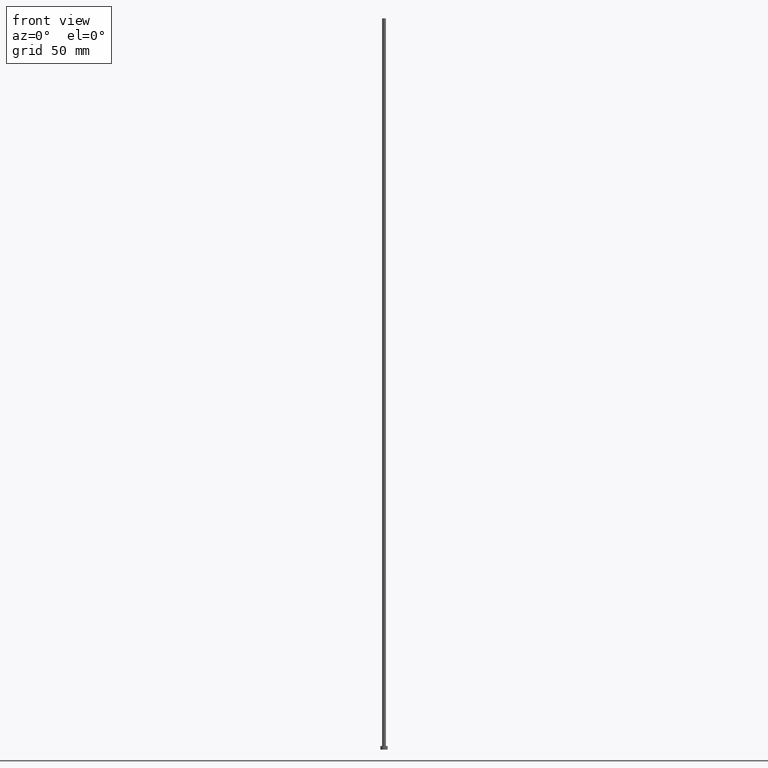
[diagram: clean part render]
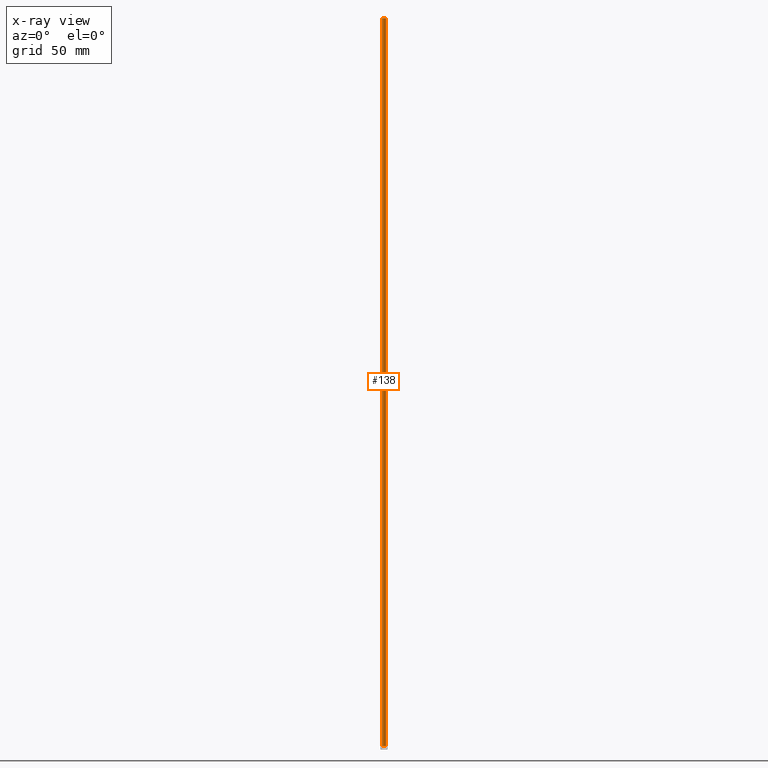
[diagram: x-ray — body ghosted, one internal face saturated and labeled with its STEP entity id]
A machine part, front view, then the same camera in x-ray: the body is ghosted and one INTERNAL B-rep face — a face not visible from any outside direction — is saturated and labeled: STEP entity #138.
In plain terms, the highlighted cylindrical surface (edge-blend (fillet) strip) has radius 1 mm, axis along (-0, -0, -1).
Its self-contained STEP definition (entity closure, byte-faithful):
#1 = DIRECTION ( 'NONE',  ( 1.000000000000000000, 0.000000000000000000, 0.000000000000000000 ) ) ;
#11 = LINE ( 'NONE', #113, #233 ) ;
#13 = VECTOR ( 'NONE', #236, 1000.000000000000000 ) ;
#21 = DIRECTION ( 'NONE',  ( 0.000000000000000000, 0.000000000000000000, 1.000000000000000000 ) ) ;
#23 = VERTEX_POINT ( 'NONE', #53 ) ;
#26 = CARTESIAN_POINT ( 'NONE',  ( 0.000000000000000000, 0.000000000000000000, 400.0000000000000000 ) ) ;
#37 = LINE ( 'NONE', #172, #13 ) ;
#40 = DIRECTION ( 'NONE',  ( -1.000000000000000000, 0.000000000000000000, 0.000000000000000000 ) ) ;
#49 = DIRECTION ( 'NONE',  ( 1.000000000000000000, 0.000000000000000000, 0.000000000000000000 ) ) ;
#51 = CIRCLE ( 'NONE', #184, 1.000000000000000000 ) ;
#53 = CARTESIAN_POINT ( 'NONE',  ( -1.000000000000000000, 0.000000000000000000, 2.000000000000000000 ) ) ;
#57 = AXIS2_PLACEMENT_3D ( 'NONE', #26, #157, #40 ) ;
#69 = ORIENTED_EDGE ( 'NONE', *, *, #114, .F. ) ;
#75 = VERTEX_POINT ( 'NONE', #182 ) ;
#76 = EDGE_CURVE ( 'NONE', #254, #75, #11, .T. ) ;
#78 = CARTESIAN_POINT ( 'NONE',  ( -1.000000000000000000, 0.000000000000000000, 400.0000000000000000 ) ) ;
#98 = CARTESIAN_POINT ( 'NONE',  ( 1.000000000000000000, 1.224646799147353207E-16, 400.0000000000000000 ) ) ;
#99 = ORIENTED_EDGE ( 'NONE', *, *, #207, .T. ) ;
#113 = CARTESIAN_POINT ( 'NONE',  ( 1.000000000000000000, 1.224646799147353207E-16, 400.0000000000000000 ) ) ;
#114 = EDGE_CURVE ( 'NONE', #254, #253, #226, .T. ) ;
#118 = EDGE_LOOP ( 'NONE', ( #69, #198, #99, #147 ) ) ;
#130 = CYLINDRICAL_SURFACE ( 'NONE', #57, 1.000000000000000000 ) ;
#138 = ADVANCED_FACE ( 'NONE', ( #219 ), #130, .T. ) ;
#147 = ORIENTED_EDGE ( 'NONE', *, *, #149, .F. ) ;
#149 = EDGE_CURVE ( 'NONE', #253, #23, #37, .T. ) ;
#157 = DIRECTION ( 'NONE',  ( -0.000000000000000000, -0.000000000000000000, -1.000000000000000000 ) ) ;
#172 = CARTESIAN_POINT ( 'NONE',  ( -1.000000000000000000, 0.000000000000000000, 400.0000000000000000 ) ) ;
#174 = DIRECTION ( 'NONE',  ( -0.000000000000000000, -0.000000000000000000, -1.000000000000000000 ) ) ;
#178 = DIRECTION ( 'NONE',  ( 0.000000000000000000, 0.000000000000000000, 1.000000000000000000 ) ) ;
#182 = CARTESIAN_POINT ( 'NONE',  ( 1.000000000000000000, 1.224646799147353207E-16, 2.000000000000000000 ) ) ;
#184 = AXIS2_PLACEMENT_3D ( 'NONE', #195, #178, #49 ) ;
#195 = CARTESIAN_POINT ( 'NONE',  ( 0.000000000000000000, 0.000000000000000000, 2.000000000000000000 ) ) ;
#198 = ORIENTED_EDGE ( 'NONE', *, *, #76, .T. ) ;
#207 = EDGE_CURVE ( 'NONE', #75, #23, #51, .T. ) ;
#219 = FACE_OUTER_BOUND ( 'NONE', #118, .T. ) ;
#221 = CARTESIAN_POINT ( 'NONE',  ( 0.000000000000000000, 0.000000000000000000, 400.0000000000000000 ) ) ;
#226 = CIRCLE ( 'NONE', #247, 1.000000000000000000 ) ;
#233 = VECTOR ( 'NONE', #174, 1000.000000000000000 ) ;
#236 = DIRECTION ( 'NONE',  ( -0.000000000000000000, -0.000000000000000000, -1.000000000000000000 ) ) ;
#247 = AXIS2_PLACEMENT_3D ( 'NONE', #221, #21, #1 ) ;
#253 = VERTEX_POINT ( 'NONE', #78 ) ;
#254 = VERTEX_POINT ( 'NONE', #98 ) ;